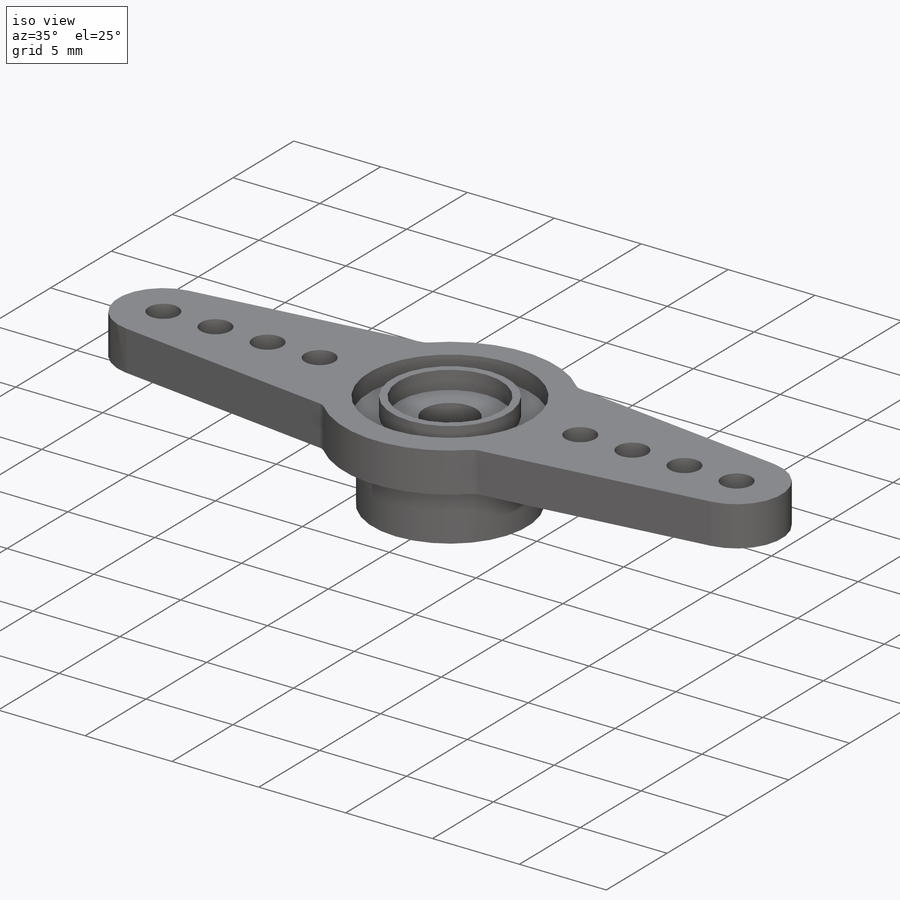
[diagram: iso view]
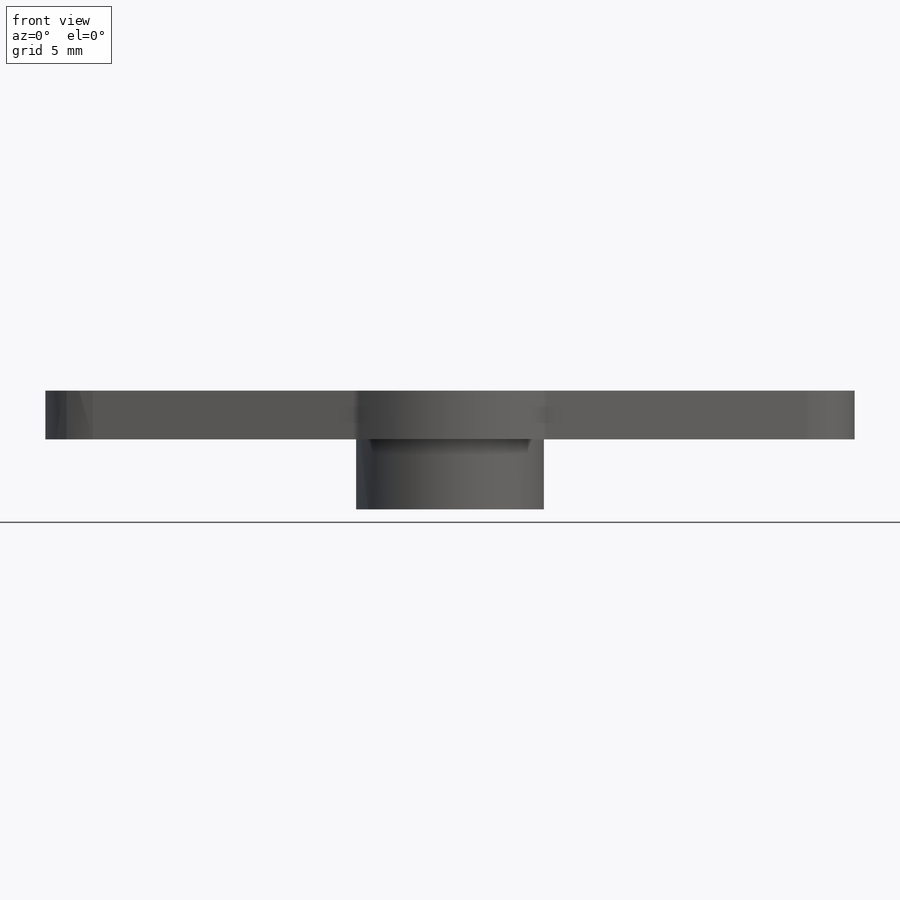
[diagram: front view]
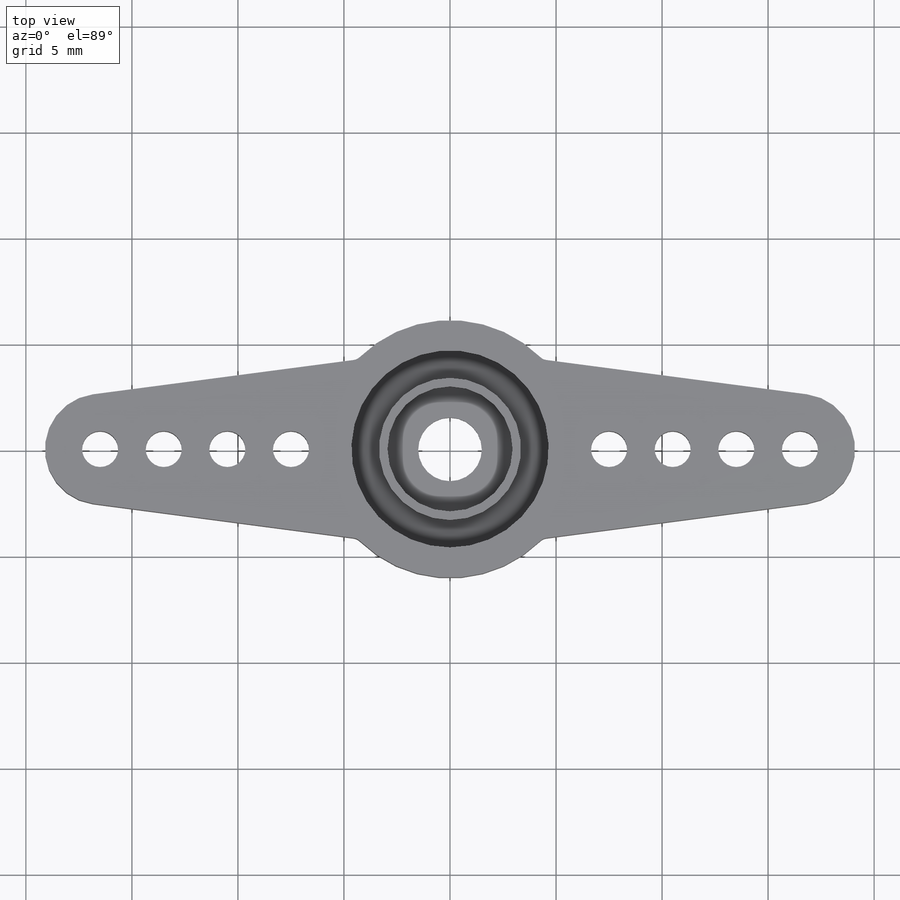
[diagram: top view]
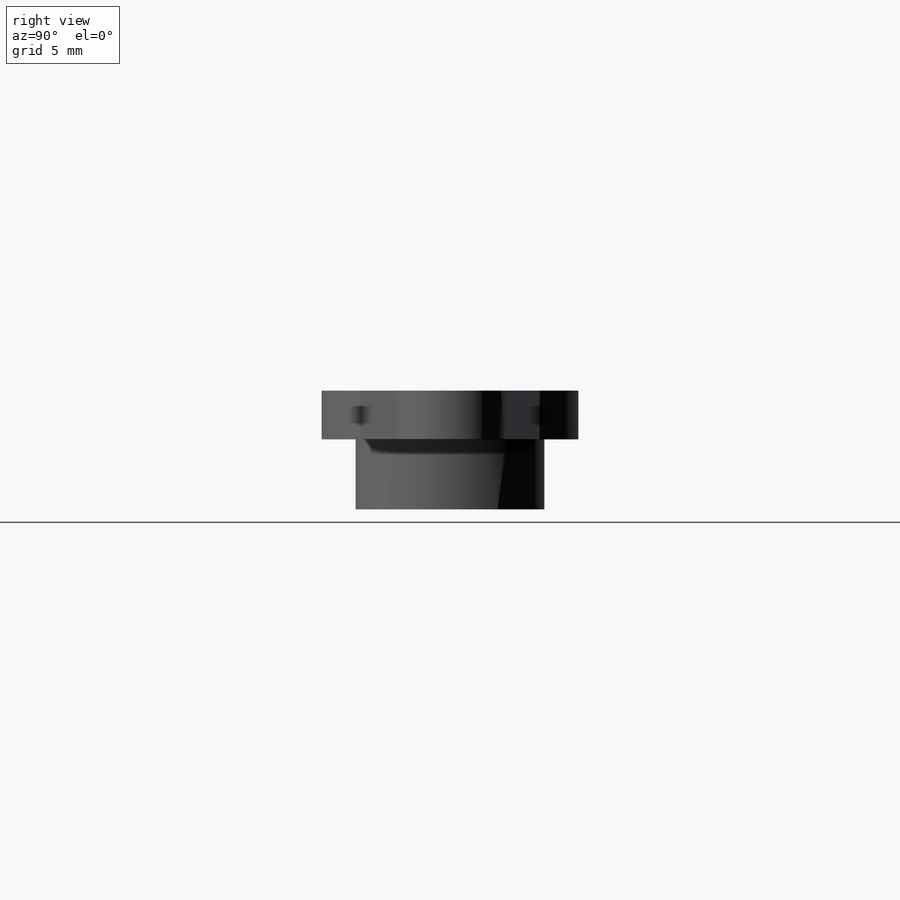
[diagram: right view]
SOLIDWORKS PART (.sldprt)
format: sldprt  version: not decoded by parser v0  size: 377,856 bytes
history: native  units: mm
features: sketch x9, cut_extrude x5, plane x3, material x1, revolve x1, extrude x1, fillet x1, pattern_circular x1 (+10 scaffold rows collapsed)
feature tree (32):
  scaffold x10  (default folders/planes/origin — collapsed)
  material  "PA Type 6"
  plane  "Plan de face"
  plane  "Plan de dessus"
  plane  "Plan de droite"
  sketch  "Esquisse1"  dims[c1.D1=38.2mm c1.D2=12.15mm c1.D3=1.7mm c1.D9=9.3mm c1.D10=6.7mm c1.D11=~5.884066mm c1.D12=3.0mm c2.D1=50.0mm c2.D3=~54.377614mm c2.D4=3.0mm c2.D5=3.0mm c2.D6=3.0mm c2.D7=33.0mm c2.D8=~12.046202mm c3.D8=15.0deg c3.D11=0.4mm]
  sketch  "Esquisse2"  dims[c1.D1=~14.545753mm c1.D2=~4.135324mm c2.D1=8.9mm c2.D2=3.5mm c2.D3=3.3mm c2.D4=5.6mm c2.D5=2.3mm c3.D4=2.3mm]
  revolve  "Révolution1"  Angle=360deg
  sketch  "Esquisse3"
  extrude  "Boss.-Extru.1"  [1 undecoded]
  fillet  "Congé1"  Radius=0.5mm
  sketch  "Esquisse4"
  cut_extrude  "Enlèv. mat.-Extru.1"  Depth=1.05mm
  sketch  "Esquisse5"
  cut_extrude  "Enlèv. mat.-Extru.2"  Depth=1.05mm
  sketch  "Esquisse6"
  cut_extrude  "Enlèv. mat.-Extru.3"  [1 undecoded]
  sketch  "Esquisse7"  dims[c1.D2=6.0mm c1.D7=~0.073448mm c1.D1=~0.372785mm c2.D1=45.6deg c2.D3=~0.253326mm c2.D4=0.5mm c2.D5=~2.703448mm c3.D5=7.2deg c3.D6=~0.372785mm c4.D6=60.0deg c4.D7=0.37mm]
  sketch  "Esquisse8"  dims[D1=0.05mm]
  cut_extrude  "Enlèv. mat.-Extru.4"  [1 undecoded]
  sketch  "Esquisse9"  dims[D2=0.05mm D3=~0.245635mm D1=0.0mm]
  cut_extrude  "Enlèv. mat.-Extru.5"  [1 undecoded]
  pattern_circular  "Répétition circulaire1"  Count=25 Angle=360deg
decode coverage: 10 of 18 modeling features carry decoded parameters
note: ~ marks probable driven/reference dimensions
note: 4 parameter values undecoded
summary: no parameter record found for 4 features
note: suppression state not decoded; provenance and decode notes live in map.json
